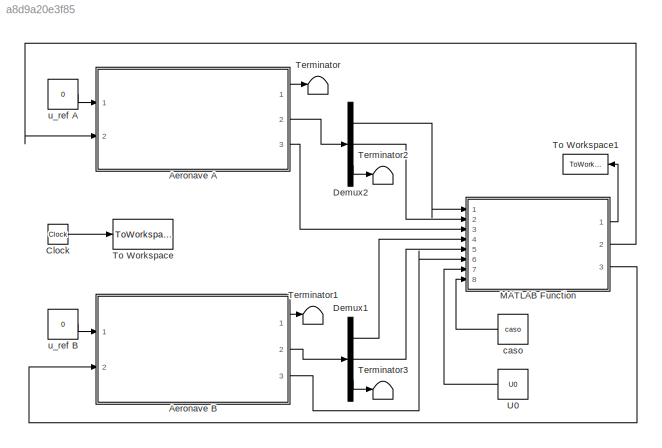
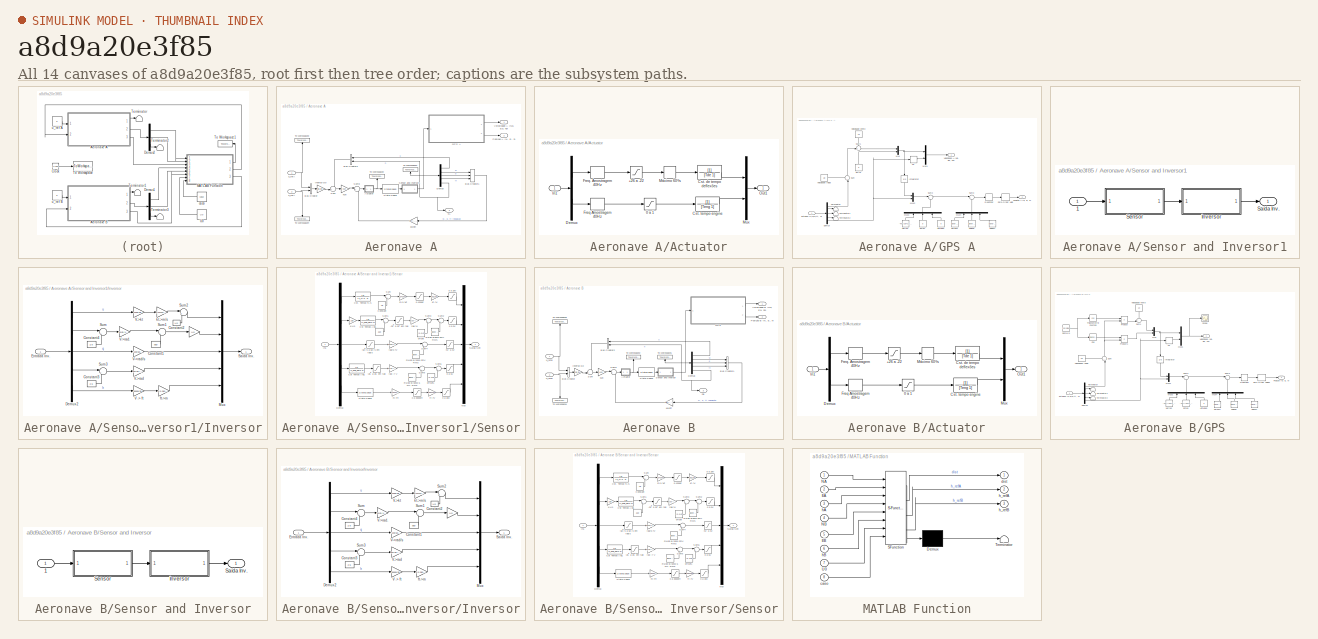
[diagram: thumbnail index - all 14 canvases of the model, root first then tree order]
MODEL slx_a8d9a20e3f85
KIND model
CONFIG AbsTol = auto
CONFIG EnableMultiTasking = off
CONFIG FixedStep = auto
CONFIG MaxStep = auto
CONFIG MinStep = auto
CONFIG RelTol = 1e-3
CONFIG SampleTimeConstraint = Unconstrained
CONFIG Solver = VariableStepAuto
CONFIG SolverName = VariableStepAuto
CONFIG StartTime = 0.0
CONFIG StopTime = 100
BLOCK [SubSystem] Aeronave A
  Ports = [2, 3]
  RequestExecContextInheritance = off
BLOCK [SubSystem] Aeronave A/Actuator
  Ports = [1, 1]
  RequestExecContextInheritance = off
BLOCK [Saturate] Aeronave A/Actuator/+26 a -22
  LowerLimit = demin
  UpperLimit = demax
BLOCK [Saturate] Aeronave A/Actuator/0 a 1
  LowerLimit = dtmin
  UpperLimit = dtmax
BLOCK [TransferFcn] Aeronave A/Actuator/Cst. de tempo deflexões
  Denominator = [Tde 1]
BLOCK [TransferFcn] Aeronave A/Actuator/Cst. tempo engine
  Denominator = [Teng 1]
BLOCK [Demux] Aeronave A/Actuator/Demux
  Outputs = 2
  Ports = [1, 2]
BLOCK [ZeroOrderHold] Aeronave A/Actuator/Freq Amostragem 40Hz
  SampleTime = 1/f_amostr
BLOCK [ZeroOrderHold] Aeronave A/Actuator/Freq. Amostragem 40Hz
  SampleTime = 1/f_amostr
BLOCK [Inport] Aeronave A/Actuator/In1
BLOCK [Mux] Aeronave A/Actuator/Mux
  DisplayOption = bar
  Inputs = 2
  Ports = [2, 1]
BLOCK [RateLimiter] Aeronave A/Actuator/Máximo 60º//s
  FallingSlewLimit = vmin_de
  LinearizeAsGain = off
  RisingSlewLimit = vmax_de
  SampleTimeMode = inherited
BLOCK [Outport] Aeronave A/Actuator/Out1
BLOCK [BusCreator] Aeronave A/Bus Creator
  DisplayOption = bar
  InheritFromInputs = on
  Inputs = 2
  Ports = [2, 1]
BLOCK [BusCreator] Aeronave A/Bus Creator1
  DisplayOption = bar
  InheritFromInputs = on
  Inputs = 3
  Ports = [3, 1]
BLOCK [BusCreator] Aeronave A/Bus Creator2
  DisplayOption = bar
  InheritFromInputs = on
  Inputs = 2
  NameLocation = top
  Ports = [2, 1]
BLOCK [Demux] Aeronave A/Demux
  Outputs = 5
  Ports = [1, 5]
BLOCK [SubSystem] Aeronave A/GPS A
  Ports = [1, 2]
  RequestExecContextInheritance = off
BLOCK [Constant] Aeronave A/GPS A/Altitude0
  NameLocation = left
  Value = 0
BLOCK [Demux] Aeronave A/GPS A/Demux
  Outputs = 5
  Ports = [1, 5]
BLOCK [Constant] Aeronave A/GPS A/EOAp
  NameLocation = right
  Value = 0
BLOCK [Constant] Aeronave A/GPS A/Este0
  NameLocation = left
  Value = 0
BLOCK [Integrator] Aeronave A/GPS A/Integrator
  NameLocation = left
  Ports = [1, 1]
BLOCK [Mux] Aeronave A/GPS A/Mux
  DisplayOption = bar
  Inputs = 2
  Ports = [2, 1]
BLOCK [Mux] Aeronave A/GPS A/Mux1
  DisplayOption = bar
  Inputs = 2
  Ports = [2, 1]
BLOCK [Mux] Aeronave A/GPS A/Mux2
  DisplayOption = bar
  Inputs = 2
  Ports = [2, 1]
BLOCK [Mux] Aeronave A/GPS A/Mux3
  DisplayOption = bar
  Inputs = 3
  NameLocation = right
  Ports = [3, 1]
BLOCK [Mux] Aeronave A/GPS A/Mux4
  DisplayOption = bar
  Inputs = 3
  NameLocation = right
  Ports = [3, 1]
BLOCK [Constant] Aeronave A/GPS A/Norte0
  NameLocation = left
  Value = -40*(U0+u_ref-uW)
BLOCK [Outport] Aeronave A/GPS A/Posição A (N, E, h)
  Port = 2
  VectorParamsAs1DForOutWhenUnconnected = off
BLOCK [Quantizer] Aeronave A/GPS A/Quantizer
BLOCK [Reference] Aeronave A/GPS A/RuidoE  REF=simulink/Sources/Band-Limited
White Noise
  NameLocation = right
  Ports = [0, 1]
  SourceBlock = simulink/Sources/Band-Limited\nWhite Noise
  SourceProductBaseCode = SL
  SourceType = Band-Limited White Noise.
BLOCK [Reference] Aeronave A/GPS A/RuidoH  REF=simulink/Sources/Band-Limited
White Noise
  NameLocation = right
  Ports = [0, 1]
  SourceBlock = simulink/Sources/Band-Limited\nWhite Noise
  SourceProductBaseCode = SL
  SourceType = Band-Limited White Noise.
BLOCK [Reference] Aeronave A/GPS A/RuídoN  REF=simulink/Sources/Band-Limited
White Noise
  NameLocation = right
  Ports = [0, 1]
  SourceBlock = simulink/Sources/Band-Limited\nWhite Noise
  SourceProductBaseCode = SL
  SourceType = Band-Limited White Noise.
BLOCK [Sum] Aeronave A/GPS A/Sum
  Inputs = ++|
  NameLocation = right
  Ports = [2, 1]
BLOCK [Sum] Aeronave A/GPS A/Sum1
  Inputs = -+|
  Ports = [2, 1]
BLOCK [Sum] Aeronave A/GPS A/Sum2
  Inputs = |++
  Ports = [2, 1]
BLOCK [Sum] Aeronave A/GPS A/Sum3
  Inputs = |++
  Ports = [2, 1]
BLOCK [Terminator] Aeronave A/GPS A/Terminator
BLOCK [Terminator] Aeronave A/GPS A/Terminator1
BLOCK [Terminator] Aeronave A/GPS A/Terminator2
BLOCK [Outport] Aeronave A/GPS A/Velocidade A (Np, Ep, hp)
  VectorParamsAs1DForOutWhenUnconnected = off
BLOCK [Constant] Aeronave A/GPS A/Velocidade Inicial 
  Value = U0
BLOCK [Constant] Aeronave A/GPS A/Velocidade vento
  NameLocation = left
  Value = 10
BLOCK [ZeroOrderHold] Aeronave A/GPS A/Zero-Order Hold
  SampleTime = 0.1
BLOCK [Inport] Aeronave A/GPS A/estados [u,w,q,tt, h]
BLOCK [Derivative] Aeronave A/GPS A/hp 
BLOCK [Gain] Aeronave A/Inverso G0
  Gain = G0_inv
  Multiplication = Matrix(K*u)
BLOCK [Outport] Aeronave A/Posição A (N, E, h)
  Port = 2
  VectorParamsAs1DForOutWhenUnconnected = off
BLOCK [SubSystem] Aeronave A/Sensor and Inversor1
  Ports = [1, 1]
  RequestExecContextInheritance = off
BLOCK [Inport] Aeronave A/Sensor and Inversor1/1
BLOCK [SubSystem] Aeronave A/Sensor and Inversor1/Inversor
  Ports = [1, 1]
  RequestExecContextInheritance = off
BLOCK [Gain] Aeronave A/Sensor and Inversor1/Inversor/ 
  Gain = U0
BLOCK [Constant] Aeronave A/Sensor and Inversor1/Inversor/Constant1
  Value = aa0
BLOCK [Constant] Aeronave A/Sensor and Inversor1/Inversor/Constant2
  Value = U0
BLOCK [Constant] Aeronave A/Sensor and Inversor1/Inversor/Constant3
  Value = 2.5
BLOCK [Constant] Aeronave A/Sensor and Inversor1/Inversor/Constant4
  Value = 2.5
BLOCK [Demux] Aeronave A/Sensor and Inversor1/Inversor/Demux2
  Outputs = 5
  Ports = [1, 5]
BLOCK [Inport] Aeronave A/Sensor and Inversor1/Inversor/Entrada Inv.
BLOCK [Mux] Aeronave A/Sensor and Inversor1/Inversor/Mux
  DisplayOption = bar
  Inputs = 5
  Ports = [5, 1]
BLOCK [Outport] Aeronave A/Sensor and Inversor1/Inversor/Saída Inv.
  VectorParamsAs1DForOutWhenUnconnected = off
BLOCK [Sum] Aeronave A/Sensor and Inversor1/Inversor/Sum
  Inputs = |+-
  Ports = [2, 1]
BLOCK [Sum] Aeronave A/Sensor and Inversor1/Inversor/Sum1
  Inputs = |+-
  Ports = [2, 1]
BLOCK [Sum] Aeronave A/Sensor and Inversor1/Inversor/Sum2
  Inputs = |+-
  Ports = [2, 1]
BLOCK [Sum] Aeronave A/Sensor and Inversor1/Inversor/Sum3
  Inputs = |+-
  Ports = [2, 1]
BLOCK [Gain] Aeronave A/Sensor and Inversor1/Inversor/V -> ft
  Gain = 30000/28
BLOCK [Gain] Aeronave A/Sensor and Inversor1/Inversor/V->kt
  Gain = 1200/28
BLOCK [Gain] Aeronave A/Sensor and Inversor1/Inversor/V->rad
  Gain = 10*(pi/180)
BLOCK [Gain] Aeronave A/Sensor and Inversor1/Inversor/V->rad.
  Gain = 10*pi/180
BLOCK [Gain] Aeronave A/Sensor and Inversor1/Inversor/V->rad//s
  Gain = (100/60)*pi/180
BLOCK [Gain] Aeronave A/Sensor and Inversor1/Inversor/ft->m
  Gain = 1/3.2808399
BLOCK [Gain] Aeronave A/Sensor and Inversor1/Inversor/kt->m//s
  Gain = 0.5144444
BLOCK [Outport] Aeronave A/Sensor and Inversor1/Saída Inv.
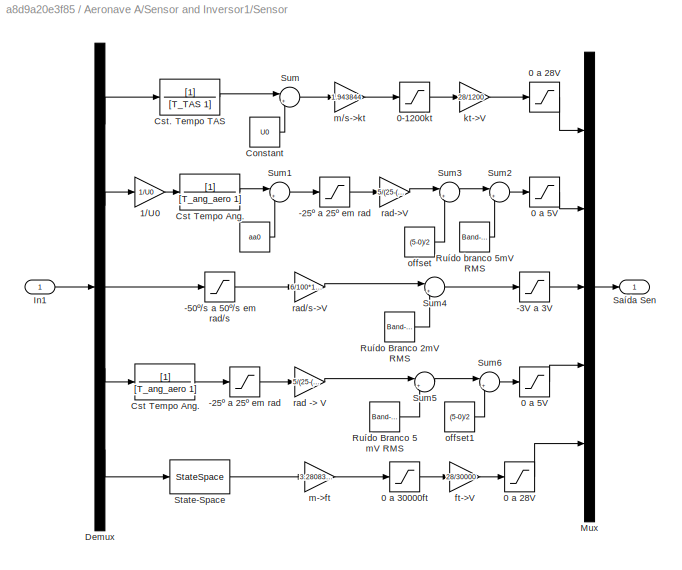
BLOCK [SubSystem] Aeronave A/Sensor and Inversor1/Sensor
  Ports = [1, 1]
  RequestExecContextInheritance = off
BLOCK [Constant] Aeronave A/Sensor and Inversor1/Sensor/ 
  Value = aa0
BLOCK [Saturate] Aeronave A/Sensor and Inversor1/Sensor/-25º a 25º em rad
  LowerLimit = -25*(pi/180)
  UpperLimit = 25*(pi/180)
BLOCK [Saturate] Aeronave A/Sensor and Inversor1/Sensor/-25º a 25º em rad 
  LowerLimit = -25*(pi/180)
  UpperLimit = 25*(pi/180)
BLOCK [Saturate] Aeronave A/Sensor and Inversor1/Sensor/-3V a 3V
  LowerLimit = -3
  UpperLimit = 3
BLOCK [Saturate] Aeronave A/Sensor and Inversor1/Sensor/-50º//s a 50º//s em rad//s
  LowerLimit = -50*(pi/180)
  UpperLimit = 50*(pi/180)
BLOCK [Saturate] Aeronave A/Sensor and Inversor1/Sensor/0 a 28V
  LowerLimit = 0
  UpperLimit = 28
BLOCK [Saturate] Aeronave A/Sensor and Inversor1/Sensor/0 a 28V 
  LowerLimit = -1
  UpperLimit = 28
BLOCK [Saturate] Aeronave A/Sensor and Inversor1/Sensor/0 a 30000ft
  LowerLimit = 0
  UpperLimit = 30000
BLOCK [Saturate] Aeronave A/Sensor and Inversor1/Sensor/0 a 5V
  LowerLimit = 0
  UpperLimit = 5
BLOCK [Saturate] Aeronave A/Sensor and Inversor1/Sensor/0 a 5V 
  LowerLimit = -5
  UpperLimit = 5
BLOCK [Saturate] Aeronave A/Sensor and Inversor1/Sensor/0-1200kt
  LowerLimit = 0
  UpperLimit = 1200
BLOCK [Gain] Aeronave A/Sensor and Inversor1/Sensor/1//U0
  Gain = 1/U0
BLOCK [Constant] Aeronave A/Sensor and Inversor1/Sensor/Constant
  Value = U0
BLOCK [TransferFcn] Aeronave A/Sensor and Inversor1/Sensor/Cst Tempo Ang.
  Denominator = [T_ang_aero 1]
BLOCK [TransferFcn] Aeronave A/Sensor and Inversor1/Sensor/Cst. Tempo TAS 
  Denominator = [T_TAS 1]
BLOCK [Demux] Aeronave A/Sensor and Inversor1/Sensor/Demux
  Outputs = 5
  Ports = [1, 5]
BLOCK [Inport] Aeronave A/Sensor and Inversor1/Sensor/In1
BLOCK [Mux] Aeronave A/Sensor and Inversor1/Sensor/Mux
  DisplayOption = bar
  Inputs = 5
  Ports = [5, 1]
BLOCK [Reference] Aeronave A/Sensor and Inversor1/Sensor/Ruído Branco 2mV RMS  REF=simulink/Sources/Band-Limited
White Noise
  Ports = [0, 1]
  SourceBlock = simulink/Sources/Band-Limited\nWhite Noise
  SourceProductBaseCode = SL
  SourceType = Band-Limited White Noise.
BLOCK [Reference] Aeronave A/Sensor and Inversor1/Sensor/Ruído Branco 5 mV RMS  REF=simulink/Sources/Band-Limited
White Noise
  Ports = [0, 1]
  SourceBlock = simulink/Sources/Band-Limited\nWhite Noise
  SourceProductBaseCode = SL
  SourceType = Band-Limited White Noise.
BLOCK [Reference] Aeronave A/Sensor and Inversor1/Sensor/Ruído branco 5mV RMS  REF=simulink/Sources/Band-Limited
White Noise
  Ports = [0, 1]
  SourceBlock = simulink/Sources/Band-Limited\nWhite Noise
  SourceProductBaseCode = SL
  SourceType = Band-Limited White Noise.
BLOCK [Outport] Aeronave A/Sensor and Inversor1/Sensor/Saída Sen
BLOCK [StateSpace] Aeronave A/Sensor and Inversor1/Sensor/State-Space
  A = A_sensorh
  B = B_sensorh
  C = C_sensorh
  D = D_sensorh
  InitialCondition = 762
  Ports = [1, 1]
BLOCK [Sum] Aeronave A/Sensor and Inversor1/Sensor/Sum
  Inputs = |++
  Ports = [2, 1]
BLOCK [Sum] Aeronave A/Sensor and Inversor1/Sensor/Sum1
  Inputs = |++
  Ports = [2, 1]
BLOCK [Sum] Aeronave A/Sensor and Inversor1/Sensor/Sum2
  Inputs = |++
  Ports = [2, 1]
BLOCK [Sum] Aeronave A/Sensor and Inversor1/Sensor/Sum3
  Inputs = |++
  Ports = [2, 1]
BLOCK [Sum] Aeronave A/Sensor and Inversor1/Sensor/Sum4
  Inputs = |++
  Ports = [2, 1]
BLOCK [Sum] Aeronave A/Sensor and Inversor1/Sensor/Sum5
  Inputs = |++
  Ports = [2, 1]
BLOCK [Sum] Aeronave A/Sensor and Inversor1/Sensor/Sum6
  Inputs = |++
  Ports = [2, 1]
BLOCK [Gain] Aeronave A/Sensor and Inversor1/Sensor/ft->V
  Gain = 28/30000
BLOCK [Gain] Aeronave A/Sensor and Inversor1/Sensor/kt->V
  Gain = 28/1200
BLOCK [Gain] Aeronave A/Sensor and Inversor1/Sensor/m->ft
  Gain = 3.2808399
BLOCK [Gain] Aeronave A/Sensor and Inversor1/Sensor/m//s->kt
  Gain = 1.943844
BLOCK [Constant] Aeronave A/Sensor and Inversor1/Sensor/offset
  Value = (5-0)/2
BLOCK [Constant] Aeronave A/Sensor and Inversor1/Sensor/offset1
  Value = (5-0)/2
BLOCK [Gain] Aeronave A/Sensor and Inversor1/Sensor/rad -> V
  Gain = 5/(25-(-25))*180/pi
BLOCK [Gain] Aeronave A/Sensor and Inversor1/Sensor/rad->V
  Gain = 5/(25-(-25))*180/pi
BLOCK [Gain] Aeronave A/Sensor and Inversor1/Sensor/rad//s->V
  Gain = 6/100*180/pi
BLOCK [StateSpace] Aeronave A/State-Space
  A = A_lqr
  B = B_lqr
  C = C_lqr
  D = D_lqr
  InitialCondition = [0,0,0,0,h]
  Ports = [1, 1]
BLOCK [Sum] Aeronave A/Sum
  Inputs = -+|
  Ports = [2, 1]
BLOCK [Sum] Aeronave A/Sum3
  Inputs = |+-
  Ports = [2, 1]
BLOCK [ToWorkspace] Aeronave A/To Workspace1
  FixptAsFi = on
  MaxDataPoints = inf
  NameLocation = right
  Ports = [1]
  SampleTime = 0.1
  SaveFormat = Structure With Time
  VariableName = VariaveisA
BLOCK [ToWorkspace] Aeronave A/To Workspace2
  FixptAsFi = on
  MaxDataPoints = inf
  NameLocation = right
  Ports = [1]
  SampleTime = 0.1
  SaveFormat = Structure With Time
  VariableName = InputsA
BLOCK [ToWorkspace] Aeronave A/To Workspace3
  FixptAsFi = on
  MaxDataPoints = inf
  NameLocation = right
  Ports = [1]
  SampleTime = 0.1
  SaveFormat = Structure With Time
  VariableName = u_refA
BLOCK [ToWorkspace] Aeronave A/To Workspace4
  FixptAsFi = on
  MaxDataPoints = inf
  NameLocation = left
  Ports = [1]
  SampleTime = 0.1
  SaveFormat = Structure With Time
  VariableName = h_refA
BLOCK [Outport] Aeronave A/Velocidade A (Np, Ep, hp)
  VectorParamsAs1DForOutWhenUnconnected = off
BLOCK [Outport] Aeronave A/hA
  Port = 3
BLOCK [Inport] Aeronave A/h_refA
  Port = 2
BLOCK [Gain] Aeronave A/kuh
  Gain = kuh
  Multiplication = Matrix(K*u)
BLOCK [Gain] Aeronave A/kwqtt
  Gain = Klqr(:,2:4)
  Multiplication = Matrix(K*u)
  NameLocation = top
BLOCK [Inport] Aeronave A/u_refA
BLOCK [SubSystem] Aeronave B
  Ports = [2, 3]
  RequestExecContextInheritance = off
BLOCK [SubSystem] Aeronave B/Actuator
  Ports = [1, 1]
  RequestExecContextInheritance = off
BLOCK [Saturate] Aeronave B/Actuator/+26 a -22
  LowerLimit = demin
  UpperLimit = demax
BLOCK [Saturate] Aeronave B/Actuator/0 a 1
  LowerLimit = dtmin
  UpperLimit = dtmax
BLOCK [TransferFcn] Aeronave B/Actuator/Cst. de tempo deflexões
  Denominator = [Tde 1]
BLOCK [TransferFcn] Aeronave B/Actuator/Cst. tempo engine
  Denominator = [Teng 1]
BLOCK [Demux] Aeronave B/Actuator/Demux
  Outputs = 2
  Ports = [1, 2]
BLOCK [ZeroOrderHold] Aeronave B/Actuator/Freq Amostragem 40Hz
  SampleTime = 1/f_amostr
BLOCK [ZeroOrderHold] Aeronave B/Actuator/Freq. Amostragem 40Hz
  SampleTime = 1/f_amostr
BLOCK [Inport] Aeronave B/Actuator/In1
BLOCK [Mux] Aeronave B/Actuator/Mux
  DisplayOption = bar
  Inputs = 2
  Ports = [2, 1]
BLOCK [RateLimiter] Aeronave B/Actuator/Máximo 60º//s
  FallingSlewLimit = vmin_de
  LinearizeAsGain = off
  RisingSlewLimit = vmax_de
  SampleTimeMode = inherited
BLOCK [Outport] Aeronave B/Actuator/Out1
BLOCK [BusCreator] Aeronave B/Bus Creator
  DisplayOption = bar
  InheritFromInputs = on
  Inputs = 2
  Ports = [2, 1]
BLOCK [BusCreator] Aeronave B/Bus Creator1
  DisplayOption = bar
  InheritFromInputs = on
  Inputs = 3
  Ports = [3, 1]
BLOCK [BusCreator] Aeronave B/Bus Creator2
  DisplayOption = bar
  InheritFromInputs = on
  Inputs = 2
  NameLocation = top
  Ports = [2, 1]
BLOCK [Demux] Aeronave B/Demux
  Outputs = 5
  Ports = [1, 5]
BLOCK [SubSystem] Aeronave B/GPS
  Ports = [1, 2]
  RequestExecContextInheritance = off
BLOCK [Constant] Aeronave B/GPS/Altitude0
  NameLocation = left
  Value = 0
BLOCK [Trigonometry] Aeronave B/GPS/Cos
  Ports = [1, 1]
BLOCK [Demux] Aeronave B/GPS/Demux
  Outputs = 5
  Ports = [1, 5]
BLOCK [Constant] Aeronave B/GPS/Este0
  NameLocation = left
  Value = -40*((U0+u_ref)*sin(135*pi/180))
BLOCK [Integrator] Aeronave B/GPS/Integrator
  NameLocation = left
  Ports = [1, 1]
BLOCK [Mux] Aeronave B/GPS/Mux
  DisplayOption = bar
  Inputs = 2
  Ports = [2, 1]
BLOCK [Mux] Aeronave B/GPS/Mux1
  DisplayOption = bar
  Inputs = 2
  Ports = [2, 1]
BLOCK [Mux] Aeronave B/GPS/Mux2
  DisplayOption = bar
  Inputs = 2
  Ports = [2, 1]
BLOCK [Mux] Aeronave B/GPS/Mux3
  DisplayOption = bar
  Inputs = 3
  NameLocation = right
  Ports = [3, 1]
BLOCK [Mux] Aeronave B/GPS/Mux4
  DisplayOption = bar
  Inputs = 3
  NameLocation = right
  Ports = [3, 1]
BLOCK [Constant] Aeronave B/GPS/Norte0
  NameLocation = left
  Value = -40*((U0+u_ref)*cos(135*pi/180)+uW)
BLOCK [Outport] Aeronave B/GPS/Posição (N, E, h)
  Port = 2
  VectorParamsAs1DForOutWhenUnconnected = off
BLOCK [Product] Aeronave B/GPS/Product
  Ports = [2, 1]
BLOCK [Product] Aeronave B/GPS/Product1
  Ports = [2, 1]
BLOCK [Quantizer] Aeronave B/GPS/Quantizer
BLOCK [Reference] Aeronave B/GPS/RuidoE  REF=simulink/Sources/Band-Limited
White Noise
  NameLocation = right
  Ports = [0, 1]
  SourceBlock = simulink/Sources/Band-Limited\nWhite Noise
  SourceProductBaseCode = SL
  SourceType = Band-Limited White Noise.
BLOCK [Reference] Aeronave B/GPS/RuisoH  REF=simulink/Sources/Band-Limited
White Noise
  NameLocation = right
  Ports = [0, 1]
  SourceBlock = simulink/Sources/Band-Limited\nWhite Noise
  SourceProductBaseCode = SL
  SourceType = Band-Limited White Noise.
BLOCK [Constant] Aeronave B/GPS/Rumo(X) 
  Value = 135*pi/180
BLOCK [Reference] Aeronave B/GPS/RuídoN  REF=simulink/Sources/Band-Limited
White Noise
  NameLocation = right
  Ports = [0, 1]
  SourceBlock = simulink/Sources/Band-Limited\nWhite Noise
  SourceProductBaseCode = SL
  SourceType = Band-Limited White Noise.
BLOCK [Scope] Aeronave B/GPS/Scope
  Floating = off
  NumInputPorts = 1
  Ports = [1]
  ScopeSpecificationString = Simulink.scopes.TimeScopeBlockCfg('CurrentConfiguration', extmgr.ConfigurationSet(extmgr.Configuration('Core','General UI',true),extmgr.Configuration('Core','Source UI',true),extmgr.Configuration('Sources','WiredSimulink',true,'DataLoggingVariableName','ScopeData2'),extmgr.Configuration('Visuals','Time Domain',true,'SerializedDisplays',{struct('MinYLimReal','-113.93137','MaxYLimReal','123.93137','...<+1425ch>
BLOCK [Sum] Aeronave B/GPS/Sum
  Inputs = ++|
  NameLocation = right
  Ports = [2, 1]
BLOCK [Sum] Aeronave B/GPS/Sum1
  Inputs = ++|
  Ports = [2, 1]
BLOCK [Sum] Aeronave B/GPS/Sum2
  Inputs = |++
  Ports = [2, 1]
BLOCK [Sum] Aeronave B/GPS/Sum3
  Inputs = |++
  Ports = [2, 1]
BLOCK [Terminator] Aeronave B/GPS/Terminator
BLOCK [Terminator] Aeronave B/GPS/Terminator1
BLOCK [Terminator] Aeronave B/GPS/Terminator2
BLOCK [Trigonometry] Aeronave B/GPS/Trigonometric Function
  Operator = cos
  Ports = [1, 1]
BLOCK [Outport] Aeronave B/GPS/Velocidade (Np, Ep, hp)
  VectorParamsAs1DForOutWhenUnconnected = off
BLOCK [Constant] Aeronave B/GPS/Velocidade Inicial 
  Value = U0
BLOCK [Constant] Aeronave B/GPS/Velocidade vento
  NameLocation = left
  Value = 10
BLOCK [ZeroOrderHold] Aeronave B/GPS/Zero Order Holder
  SampleTime = 0.1
BLOCK [Inport] Aeronave B/GPS/estados [u,w,q,tt, h]
BLOCK [Derivative] Aeronave B/GPS/hp 
BLOCK [Gain] Aeronave B/Inverso G0
  Gain = G0_inv
  Multiplication = Matrix(K*u)
BLOCK [Outport] Aeronave B/Posição B (N, E, h)
  Port = 2
  VectorParamsAs1DForOutWhenUnconnected = off
BLOCK [SubSystem] Aeronave B/Sensor and Inversor
  Ports = [1, 1]
  RequestExecContextInheritance = off
BLOCK [Inport] Aeronave B/Sensor and Inversor/1
BLOCK [SubSystem] Aeronave B/Sensor and Inversor/Inversor
  Ports = [1, 1]
  RequestExecContextInheritance = off
BLOCK [Gain] Aeronave B/Sensor and Inversor/Inversor/ 
  Gain = U0
BLOCK [Constant] Aeronave B/Sensor and Inversor/Inversor/Constant1
  Value = aa0
BLOCK [Constant] Aeronave B/Sensor and Inversor/Inversor/Constant2
  Value = U0
BLOCK [Constant] Aeronave B/Sensor and Inversor/Inversor/Constant3
  Value = 2.5
BLOCK [Constant] Aeronave B/Sensor and Inversor/Inversor/Constant4
  Value = 2.5
BLOCK [Demux] Aeronave B/Sensor and Inversor/Inversor/Demux2
  Outputs = 5
  Ports = [1, 5]
BLOCK [Inport] Aeronave B/Sensor and Inversor/Inversor/Entrada Inv.
BLOCK [Mux] Aeronave B/Sensor and Inversor/Inversor/Mux
  DisplayOption = bar
  Inputs = 5
  Ports = [5, 1]
BLOCK [Outport] Aeronave B/Sensor and Inversor/Inversor/Saída Inv.
  VectorParamsAs1DForOutWhenUnconnected = off
BLOCK [Sum] Aeronave B/Sensor and Inversor/Inversor/Sum
  Inputs = |+-
  Ports = [2, 1]
BLOCK [Sum] Aeronave B/Sensor and Inversor/Inversor/Sum1
  Inputs = |+-
  Ports = [2, 1]
BLOCK [Sum] Aeronave B/Sensor and Inversor/Inversor/Sum2
  Inputs = |+-
  Ports = [2, 1]
BLOCK [Sum] Aeronave B/Sensor and Inversor/Inversor/Sum3
  Inputs = |+-
  Ports = [2, 1]
BLOCK [Gain] Aeronave B/Sensor and Inversor/Inversor/V -> ft
  Gain = 30000/28
BLOCK [Gain] Aeronave B/Sensor and Inversor/Inversor/V->kt
  Gain = 1200/28
BLOCK [Gain] Aeronave B/Sensor and Inversor/Inversor/V->rad
  Gain = 10*(pi/180)
BLOCK [Gain] Aeronave B/Sensor and Inversor/Inversor/V->rad.
  Gain = 10*pi/180
BLOCK [Gain] Aeronave B/Sensor and Inversor/Inversor/V->rad//s
  Gain = (100/60)*pi/180
BLOCK [Gain] Aeronave B/Sensor and Inversor/Inversor/ft->m
  Gain = 1/3.2808399
BLOCK [Gain] Aeronave B/Sensor and Inversor/Inversor/kt->m//s
  Gain = 0.5144444
BLOCK [Outport] Aeronave B/Sensor and Inversor/Saída Inv.
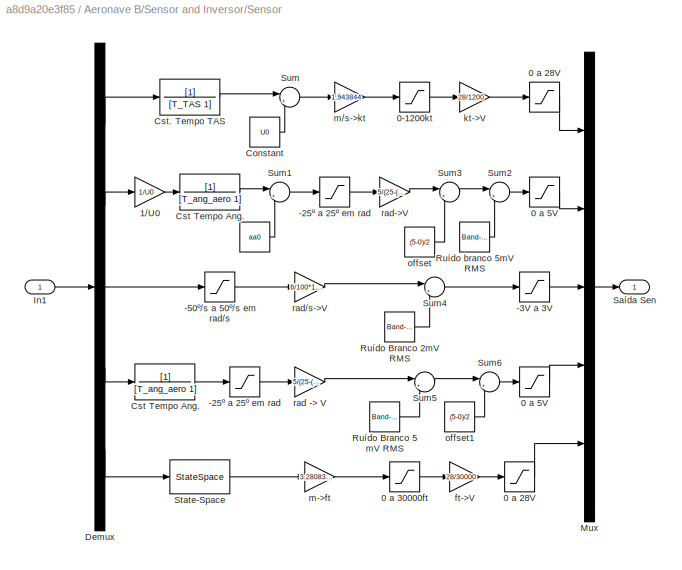
BLOCK [SubSystem] Aeronave B/Sensor and Inversor/Sensor
  Ports = [1, 1]
  RequestExecContextInheritance = off
BLOCK [Constant] Aeronave B/Sensor and Inversor/Sensor/ 
  Value = aa0
BLOCK [Saturate] Aeronave B/Sensor and Inversor/Sensor/-25º a 25º em rad
  LowerLimit = -25*(pi/180)
  UpperLimit = 25*(pi/180)
BLOCK [Saturate] Aeronave B/Sensor and Inversor/Sensor/-25º a 25º em rad 
  LowerLimit = -25*(pi/180)
  UpperLimit = 25*(pi/180)
BLOCK [Saturate] Aeronave B/Sensor and Inversor/Sensor/-3V a 3V
  LowerLimit = -3
  UpperLimit = 3
BLOCK [Saturate] Aeronave B/Sensor and Inversor/Sensor/-50º//s a 50º//s em rad//s
  LowerLimit = -50*(pi/180)
  UpperLimit = 50*(pi/180)
BLOCK [Saturate] Aeronave B/Sensor and Inversor/Sensor/0 a 28V
  LowerLimit = 0
  UpperLimit = 28
BLOCK [Saturate] Aeronave B/Sensor and Inversor/Sensor/0 a 28V 
  LowerLimit = -1
  UpperLimit = 28
BLOCK [Saturate] Aeronave B/Sensor and Inversor/Sensor/0 a 30000ft
  LowerLimit = 0
  UpperLimit = 30000
BLOCK [Saturate] Aeronave B/Sensor and Inversor/Sensor/0 a 5V
  LowerLimit = 0
  UpperLimit = 5
BLOCK [Saturate] Aeronave B/Sensor and Inversor/Sensor/0 a 5V 
  LowerLimit = -5
  UpperLimit = 5
BLOCK [Saturate] Aeronave B/Sensor and Inversor/Sensor/0-1200kt
  LowerLimit = 0
  UpperLimit = 1200
BLOCK [Gain] Aeronave B/Sensor and Inversor/Sensor/1//U0
  Gain = 1/U0
BLOCK [Constant] Aeronave B/Sensor and Inversor/Sensor/Constant
  Value = U0
BLOCK [TransferFcn] Aeronave B/Sensor and Inversor/Sensor/Cst Tempo Ang.
  Denominator = [T_ang_aero 1]
BLOCK [TransferFcn] Aeronave B/Sensor and Inversor/Sensor/Cst. Tempo TAS 
  Denominator = [T_TAS 1]
BLOCK [Demux] Aeronave B/Sensor and Inversor/Sensor/Demux
  Outputs = 5
  Ports = [1, 5]
BLOCK [Inport] Aeronave B/Sensor and Inversor/Sensor/In1
BLOCK [Mux] Aeronave B/Sensor and Inversor/Sensor/Mux
  DisplayOption = bar
  Inputs = 5
  Ports = [5, 1]
BLOCK [Reference] Aeronave B/Sensor and Inversor/Sensor/Ruído Branco 2mV RMS  REF=simulink/Sources/Band-Limited
White Noise
  Ports = [0, 1]
  SourceBlock = simulink/Sources/Band-Limited\nWhite Noise
  SourceProductBaseCode = SL
  SourceType = Band-Limited White Noise.
BLOCK [Reference] Aeronave B/Sensor and Inversor/Sensor/Ruído Branco 5 mV RMS  REF=simulink/Sources/Band-Limited
White Noise
  Ports = [0, 1]
  SourceBlock = simulink/Sources/Band-Limited\nWhite Noise
  SourceProductBaseCode = SL
  SourceType = Band-Limited White Noise.
BLOCK [Reference] Aeronave B/Sensor and Inversor/Sensor/Ruído branco 5mV RMS  REF=simulink/Sources/Band-Limited
White Noise
  Ports = [0, 1]
  SourceBlock = simulink/Sources/Band-Limited\nWhite Noise
  SourceProductBaseCode = SL
  SourceType = Band-Limited White Noise.
BLOCK [Outport] Aeronave B/Sensor and Inversor/Sensor/Saída Sen
BLOCK [StateSpace] Aeronave B/Sensor and Inversor/Sensor/State-Space
  A = A_sensorh
  B = B_sensorh
  C = C_sensorh
  D = D_sensorh
  InitialCondition = 762
  Ports = [1, 1]
BLOCK [Sum] Aeronave B/Sensor and Inversor/Sensor/Sum
  Inputs = |++
  Ports = [2, 1]
BLOCK [Sum] Aeronave B/Sensor and Inversor/Sensor/Sum1
  Inputs = |++
  Ports = [2, 1]
BLOCK [Sum] Aeronave B/Sensor and Inversor/Sensor/Sum2
  Inputs = |++
  Ports = [2, 1]
BLOCK [Sum] Aeronave B/Sensor and Inversor/Sensor/Sum3
  Inputs = |++
  Ports = [2, 1]
BLOCK [Sum] Aeronave B/Sensor and Inversor/Sensor/Sum4
  Inputs = |++
  Ports = [2, 1]
BLOCK [Sum] Aeronave B/Sensor and Inversor/Sensor/Sum5
  Inputs = |++
  Ports = [2, 1]
BLOCK [Sum] Aeronave B/Sensor and Inversor/Sensor/Sum6
  Inputs = |++
  Ports = [2, 1]
BLOCK [Gain] Aeronave B/Sensor and Inversor/Sensor/ft->V
  Gain = 28/30000
BLOCK [Gain] Aeronave B/Sensor and Inversor/Sensor/kt->V
  Gain = 28/1200
BLOCK [Gain] Aeronave B/Sensor and Inversor/Sensor/m->ft
  Gain = 3.2808399
BLOCK [Gain] Aeronave B/Sensor and Inversor/Sensor/m//s->kt
  Gain = 1.943844
BLOCK [Constant] Aeronave B/Sensor and Inversor/Sensor/offset
  Value = (5-0)/2
BLOCK [Constant] Aeronave B/Sensor and Inversor/Sensor/offset1
  Value = (5-0)/2
BLOCK [Gain] Aeronave B/Sensor and Inversor/Sensor/rad -> V
  Gain = 5/(25-(-25))*180/pi
BLOCK [Gain] Aeronave B/Sensor and Inversor/Sensor/rad->V
  Gain = 5/(25-(-25))*180/pi
BLOCK [Gain] Aeronave B/Sensor and Inversor/Sensor/rad//s->V
  Gain = 6/100*180/pi
BLOCK [StateSpace] Aeronave B/State-Space
  A = A_lqr
  B = B_lqr
  C = C_lqr
  D = D_lqr
  InitialCondition = [0,0,0,0,h]
  Ports = [1, 1]
BLOCK [Sum] Aeronave B/Sum
  Inputs = -+|
  Ports = [2, 1]
BLOCK [Sum] Aeronave B/Sum3
  Inputs = |+-
  Ports = [2, 1]
BLOCK [ToWorkspace] Aeronave B/To Workspace1
  FixptAsFi = on
  MaxDataPoints = inf
  NameLocation = right
  Ports = [1]
  SampleTime = 0.1
  SaveFormat = Structure With Time
  VariableName = VariaveisB
BLOCK [ToWorkspace] Aeronave B/To Workspace2
  FixptAsFi = on
  MaxDataPoints = inf
  NameLocation = right
  Ports = [1]
  SampleTime = 0.1
  SaveFormat = Structure With Time
  VariableName = InputsB
BLOCK [ToWorkspace] Aeronave B/To Workspace3
  FixptAsFi = on
  MaxDataPoints = inf
  NameLocation = right
  Ports = [1]
  SampleTime = 0.1
  SaveFormat = Structure With Time
  VariableName = u_refB
BLOCK [ToWorkspace] Aeronave B/To Workspace4
  FixptAsFi = on
  MaxDataPoints = inf
  NameLocation = left
  Ports = [1]
  SampleTime = 0.1
  SaveFormat = Structure With Time
  VariableName = h_refB
BLOCK [Outport] Aeronave B/Velocidade B (Np, Ep, hp)
  VectorParamsAs1DForOutWhenUnconnected = off
BLOCK [Outport] Aeronave B/hB
  Port = 3
BLOCK [Inport] Aeronave B/h_refB
  Port = 2
BLOCK [Gain] Aeronave B/kuh
  Gain = kuh
  Multiplication = Matrix(K*u)
BLOCK [Gain] Aeronave B/kwqtt
  Gain = Klqr(:,2:4)
  Multiplication = Matrix(K*u)
  NameLocation = top
BLOCK [Inport] Aeronave B/u_refB
BLOCK [Clock] Clock
BLOCK [Demux] Demux1
  Outputs = 3
  Ports = [1, 3]
BLOCK [Demux] Demux2
  Outputs = 3
  Ports = [1, 3]
BLOCK [SubSystem] MATLAB Function
  ErrorFcn = Stateflow.Translate.translate
  PermitHierarchicalResolution = ExplicitOnly
  Ports = [8, 3]
  RequestExecContextInheritance = off
  SFBlockType = MATLAB Function
  TreatAsAtomicUnit = on
BLOCK [Demux] MATLAB Function/ Demux 
  Outputs = 1
  Ports = [1, 1]
BLOCK [S-Function] MATLAB Function/ SFunction 
  EnableBusSupport = on
  FunctionName = sf_sfun
  PortCounts = [8 4]
  Ports = [8, 4]
  SFcnIsStateOwnerBlock = off
  SFunctionDeploymentMode = off
  Tag = Stateflow S-Function 2
BLOCK [Terminator] MATLAB Function/ Terminator 
BLOCK [Inport] MATLAB Function/EA
  Port = 2
BLOCK [Inport] MATLAB Function/EB
  Port = 5
BLOCK [Inport] MATLAB Function/NA
BLOCK [Inport] MATLAB Function/NB
  Port = 4
BLOCK [Inport] MATLAB Function/U0
  Port = 7
BLOCK [Inport] MATLAB Function/caso
  Port = 8
BLOCK [Outport] MATLAB Function/dist
  VectorParamsAs1DForOutWhenUnconnected = off
BLOCK [Inport] MATLAB Function/hA
  Port = 3
BLOCK [Inport] MATLAB Function/hB
  Port = 6
BLOCK [Outport] MATLAB Function/h_refA
  Port = 2
  VectorParamsAs1DForOutWhenUnconnected = off
BLOCK [Outport] MATLAB Function/h_refB
  Port = 3
  VectorParamsAs1DForOutWhenUnconnected = off
BLOCK [Terminator] Terminator
BLOCK [Terminator] Terminator1
BLOCK [Terminator] Terminator2
BLOCK [Terminator] Terminator3
BLOCK [ToWorkspace] To Workspace
  FixptAsFi = on
  MaxDataPoints = inf
  Ports = [1]
  SampleTime = 1
  VariableName = time
BLOCK [ToWorkspace] To Workspace1
  FixptAsFi = on
  MaxDataPoints = inf
  NameLocation = top
  Ports = [1]
  SampleTime = -1
  SaveFormat = Structure With Time
  VariableName = dist
BLOCK [Constant] U0
  NameLocation = top
  Value = U0
BLOCK [Constant] caso
  NameLocation = top
  Value = caso
BLOCK [Constant] u_ref A
  Value = 0
BLOCK [Constant] u_ref B
  Value = 0
LINE Aeronave A/Actuator/+26 a -22:1 -> Aeronave A/Actuator/Máximo 60º//s:1
LINE Aeronave A/Actuator/0 a 1:1 -> Aeronave A/Actuator/Cst. tempo engine:1
LINE Aeronave A/Actuator/Cst. de tempo deflexões:1 -> Aeronave A/Actuator/Mux:1
LINE Aeronave A/Actuator/Cst. tempo engine:1 -> Aeronave A/Actuator/Mux:2
LINE Aeronave A/Actuator/Demux:1 -> Aeronave A/Actuator/Freq. Amostragem 40Hz:1
LINE Aeronave A/Actuator/Demux:2 -> Aeronave A/Actuator/Freq Amostragem 40Hz:1
LINE Aeronave A/Actuator/Freq Amostragem 40Hz:1 -> Aeronave A/Actuator/0 a 1:1
LINE Aeronave A/Actuator/Freq. Amostragem 40Hz:1 -> Aeronave A/Actuator/+26 a -22:1
LINE Aeronave A/Actuator/In1:1 -> Aeronave A/Actuator/Demux:1
LINE Aeronave A/Actuator/Mux:1 -> Aeronave A/Actuator/Out1:1
LINE Aeronave A/Actuator/Máximo 60º//s:1 -> Aeronave A/Actuator/Cst. de tempo deflexões:1
NET Aeronave A/Actuator:1 -> Aeronave A/State-Space:1, Aeronave A/To Workspace2:1
LINE Aeronave A/Bus Creator1:1 -> Aeronave A/kwqtt:1
LINE Aeronave A/Bus Creator2:1 -> Aeronave A/Sum:1
LINE Aeronave A/Bus Creator:1 -> Aeronave A/Inverso G0:1
LINE Aeronave A/Demux:1 -> Aeronave A/Bus Creator2:1
LINE Aeronave A/Demux:2 -> Aeronave A/Bus Creator1:1
LINE Aeronave A/Demux:3 -> Aeronave A/Bus Creator1:2
LINE Aeronave A/Demux:4 -> Aeronave A/Bus Creator1:3
NET Aeronave A/Demux:5 -> Aeronave A/Bus Creator2:2, Aeronave A/hA:1
LINE Aeronave A/GPS A/Altitude0:1 -> Aeronave A/GPS A/Mux3:3
LINE Aeronave A/GPS A/Demux:1 -> Aeronave A/GPS A/Sum:2
LINE Aeronave A/GPS A/Demux:2 -> Aeronave A/GPS A/Terminator:1
LINE Aeronave A/GPS A/Demux:3 -> Aeronave A/GPS A/Terminator1:1
LINE Aeronave A/GPS A/Demux:4 -> Aeronave A/GPS A/Terminator2:1
NET Aeronave A/GPS A/Demux:5 -> Aeronave A/GPS A/Mux2:2, Aeronave A/GPS A/hp :1
LINE Aeronave A/GPS A/EOAp:1 -> Aeronave A/GPS A/Mux:2
LINE Aeronave A/GPS A/Este0:1 -> Aeronave A/GPS A/Mux3:2
LINE Aeronave A/GPS A/Integrator:1 -> Aeronave A/GPS A/Mux2:1
LINE Aeronave A/GPS A/Mux1:1 -> Aeronave A/GPS A/Velocidade A (Np, Ep, hp):1
LINE Aeronave A/GPS A/Mux2:1 -> Aeronave A/GPS A/Sum2:1
LINE Aeronave A/GPS A/Mux3:1 -> Aeronave A/GPS A/Sum2:2
LINE Aeronave A/GPS A/Mux4:1 -> Aeronave A/GPS A/Sum3:2
NET Aeronave A/GPS A/Mux:1 -> Aeronave A/GPS A/Integrator:1, Aeronave A/GPS A/Mux1:1
LINE Aeronave A/GPS A/Norte0:1 -> Aeronave A/GPS A/Mux3:1
LINE Aeronave A/GPS A/Quantizer:1 -> Aeronave A/GPS A/Zero-Order Hold:1
LINE Aeronave A/GPS A/RuidoE:1 -> Aeronave A/GPS A/Mux4:2
LINE Aeronave A/GPS A/RuidoH:1 -> Aeronave A/GPS A/Mux4:3
LINE Aeronave A/GPS A/RuídoN:1 -> Aeronave A/GPS A/Mux4:1
LINE Aeronave A/GPS A/Sum1:1 -> Aeronave A/GPS A/Mux:1
LINE Aeronave A/GPS A/Sum2:1 -> Aeronave A/GPS A/Sum3:1
LINE Aeronave A/GPS A/Sum3:1 -> Aeronave A/GPS A/Quantizer:1
LINE Aeronave A/GPS A/Sum:1 -> Aeronave A/GPS A/Sum1:2
LINE Aeronave A/GPS A/Velocidade Inicial :1 -> Aeronave A/GPS A/Sum:1
LINE Aeronave A/GPS A/Velocidade vento:1 -> Aeronave A/GPS A/Sum1:1
LINE Aeronave A/GPS A/Zero-Order Hold:1 -> Aeronave A/GPS A/Posição A (N, E, h):1
LINE Aeronave A/GPS A/estados [u,w,q,tt, h]:1 -> Aeronave A/GPS A/Demux:1
LINE Aeronave A/GPS A/hp :1 -> Aeronave A/GPS A/Mux1:2
LINE Aeronave A/GPS A:1 -> Aeronave A/Velocidade A (Np, Ep, hp):1
LINE Aeronave A/GPS A:2 -> Aeronave A/Posição A (N, E, h):1
LINE Aeronave A/Inverso G0:1 -> Aeronave A/Sum:2
LINE Aeronave A/Sensor and Inversor1/1:1 -> Aeronave A/Sensor and Inversor1/Sensor:1
LINE Aeronave A/Sensor and Inversor1/Inversor/ :1 -> Aeronave A/Sensor and Inversor1/Inversor/Mux:2
LINE Aeronave A/Sensor and Inversor1/Inversor/Constant1:1 -> Aeronave A/Sensor and Inversor1/Inversor/Sum1:2
LINE Aeronave A/Sensor and Inversor1/Inversor/Constant2:1 -> Aeronave A/Sensor and Inversor1/Inversor/Sum2:2
LINE Aeronave A/Sensor and Inversor1/Inversor/Constant3:1 -> Aeronave A/Sensor and Inversor1/Inversor/Sum3:2
LINE Aeronave A/Sensor and Inversor1/Inversor/Constant4:1 -> Aeronave A/Sensor and Inversor1/Inversor/Sum:2
LINE Aeronave A/Sensor and Inversor1/Inversor/Demux2:1 -> Aeronave A/Sensor and Inversor1/Inversor/V->kt:1
LINE Aeronave A/Sensor and Inversor1/Inversor/Demux2:2 -> Aeronave A/Sensor and Inversor1/Inversor/Sum:1
LINE Aeronave A/Sensor and Inversor1/Inversor/Demux2:3 -> Aeronave A/Sensor and Inversor1/Inversor/V->rad//s:1
LINE Aeronave A/Sensor and Inversor1/Inversor/Demux2:4 -> Aeronave A/Sensor and Inversor1/Inversor/Sum3:1
LINE Aeronave A/Sensor and Inversor1/Inversor/Demux2:5 -> Aeronave A/Sensor and Inversor1/Inversor/V -> ft:1
LINE Aeronave A/Sensor and Inversor1/Inversor/Entrada Inv.:1 -> Aeronave A/Sensor and Inversor1/Inversor/Demux2:1
LINE Aeronave A/Sensor and Inversor1/Inversor/Mux:1 -> Aeronave A/Sensor and Inversor1/Inversor/Saída Inv.:1
LINE Aeronave A/Sensor and Inversor1/Inversor/Sum1:1 -> Aeronave A/Sensor and Inversor1/Inversor/ :1
LINE Aeronave A/Sensor and Inversor1/Inversor/Sum2:1 -> Aeronave A/Sensor and Inversor1/Inversor/Mux:1
LINE Aeronave A/Sensor and Inversor1/Inversor/Sum3:1 -> Aeronave A/Sensor and Inversor1/Inversor/V->rad:1
LINE Aeronave A/Sensor and Inversor1/Inversor/Sum:1 -> Aeronave A/Sensor and Inversor1/Inversor/V->rad.:1
LINE Aeronave A/Sensor and Inversor1/Inversor/V -> ft:1 -> Aeronave A/Sensor and Inversor1/Inversor/ft->m:1
LINE Aeronave A/Sensor and Inversor1/Inversor/V->kt:1 -> Aeronave A/Sensor and Inversor1/Inversor/kt->m//s:1
LINE Aeronave A/Sensor and Inversor1/Inversor/V->rad.:1 -> Aeronave A/Sensor and Inversor1/Inversor/Sum1:1
LINE Aeronave A/Sensor and Inversor1/Inversor/V->rad//s:1 -> Aeronave A/Sensor and Inversor1/Inversor/Mux:3
LINE Aeronave A/Sensor and Inversor1/Inversor/V->rad:1 -> Aeronave A/Sensor and Inversor1/Inversor/Mux:4
LINE Aeronave A/Sensor and Inversor1/Inversor/ft->m:1 -> Aeronave A/Sensor and Inversor1/Inversor/Mux:5
LINE Aeronave A/Sensor and Inversor1/Inversor/kt->m//s:1 -> Aeronave A/Sensor and Inversor1/Inversor/Sum2:1
LINE Aeronave A/Sensor and Inversor1/Inversor:1 -> Aeronave A/Sensor and Inversor1/Saída Inv.:1
LINE Aeronave A/Sensor and Inversor1/Sensor/ :1 -> Aeronave A/Sensor and Inversor1/Sensor/Sum1:2
LINE Aeronave A/Sensor and Inversor1/Sensor/-25º a 25º em rad :1 -> Aeronave A/Sensor and Inversor1/Sensor/rad -> V:1
LINE Aeronave A/Sensor and Inversor1/Sensor/-25º a 25º em rad:1 -> Aeronave A/Sensor and Inversor1/Sensor/rad->V:1
LINE Aeronave A/Sensor and Inversor1/Sensor/-3V a 3V:1 -> Aeronave A/Sensor and Inversor1/Sensor/Mux:3
LINE Aeronave A/Sensor and Inversor1/Sensor/-50º//s a 50º//s em rad//s:1 -> Aeronave A/Sensor and Inversor1/Sensor/rad//s->V:1
LINE Aeronave A/Sensor and Inversor1/Sensor/0 a 28V :1 -> Aeronave A/Sensor and Inversor1/Sensor/Mux:5
LINE Aeronave A/Sensor and Inversor1/Sensor/0 a 28V:1 -> Aeronave A/Sensor and Inversor1/Sensor/Mux:1
LINE Aeronave A/Sensor and Inversor1/Sensor/0 a 30000ft:1 -> Aeronave A/Sensor and Inversor1/Sensor/ft->V:1
LINE Aeronave A/Sensor and Inversor1/Sensor/0 a 5V :1 -> Aeronave A/Sensor and Inversor1/Sensor/Mux:4
LINE Aeronave A/Sensor and Inversor1/Sensor/0 a 5V:1 -> Aeronave A/Sensor and Inversor1/Sensor/Mux:2
LINE Aeronave A/Sensor and Inversor1/Sensor/0-1200kt:1 -> Aeronave A/Sensor and Inversor1/Sensor/kt->V:1
LINE Aeronave A/Sensor and Inversor1/Sensor/1//U0:1 -> Aeronave A/Sensor and Inversor1/Sensor/Cst Tempo Ang.:1
LINE Aeronave A/Sensor and Inversor1/Sensor/Constant:1 -> Aeronave A/Sensor and Inversor1/Sensor/Sum:2
NET Aeronave A/Sensor and Inversor1/Sensor/Cst Tempo Ang.:1 -> Aeronave A/Sensor and Inversor1/Sensor/-25º a 25º em rad :1, Aeronave A/Sensor and Inversor1/Sensor/Sum1:1
LINE Aeronave A/Sensor and Inversor1/Sensor/Cst. Tempo TAS :1 -> Aeronave A/Sensor and Inversor1/Sensor/Sum:1
LINE Aeronave A/Sensor and Inversor1/Sensor/Demux:1 -> Aeronave A/Sensor and Inversor1/Sensor/Cst. Tempo TAS :1
LINE Aeronave A/Sensor and Inversor1/Sensor/Demux:2 -> Aeronave A/Sensor and Inversor1/Sensor/1//U0:1
LINE Aeronave A/Sensor and Inversor1/Sensor/Demux:3 -> Aeronave A/Sensor and Inversor1/Sensor/-50º//s a 50º//s em rad//s:1
LINE Aeronave A/Sensor and Inversor1/Sensor/Demux:4 -> Aeronave A/Sensor and Inversor1/Sensor/Cst Tempo Ang.:1
LINE Aeronave A/Sensor and Inversor1/Sensor/Demux:5 -> Aeronave A/Sensor and Inversor1/Sensor/State-Space:1
LINE Aeronave A/Sensor and Inversor1/Sensor/In1:1 -> Aeronave A/Sensor and Inversor1/Sensor/Demux:1
LINE Aeronave A/Sensor and Inversor1/Sensor/Mux:1 -> Aeronave A/Sensor and Inversor1/Sensor/Saída Sen:1
LINE Aeronave A/Sensor and Inversor1/Sensor/Ruído Branco 2mV RMS:1 -> Aeronave A/Sensor and Inversor1/Sensor/Sum4:2
LINE Aeronave A/Sensor and Inversor1/Sensor/Ruído Branco 5 mV RMS:1 -> Aeronave A/Sensor and Inversor1/Sensor/Sum5:2
LINE Aeronave A/Sensor and Inversor1/Sensor/Ruído branco 5mV RMS:1 -> Aeronave A/Sensor and Inversor1/Sensor/Sum2:2
LINE Aeronave A/Sensor and Inversor1/Sensor/State-Space:1 -> Aeronave A/Sensor and Inversor1/Sensor/m->ft:1
LINE Aeronave A/Sensor and Inversor1/Sensor/Sum1:1 -> Aeronave A/Sensor and Inversor1/Sensor/-25º a 25º em rad:1
LINE Aeronave A/Sensor and Inversor1/Sensor/Sum2:1 -> Aeronave A/Sensor and Inversor1/Sensor/0 a 5V:1
LINE Aeronave A/Sensor and Inversor1/Sensor/Sum3:1 -> Aeronave A/Sensor and Inversor1/Sensor/Sum2:1
LINE Aeronave A/Sensor and Inversor1/Sensor/Sum4:1 -> Aeronave A/Sensor and Inversor1/Sensor/-3V a 3V:1
LINE Aeronave A/Sensor and Inversor1/Sensor/Sum5:1 -> Aeronave A/Sensor and Inversor1/Sensor/Sum6:1
LINE Aeronave A/Sensor and Inversor1/Sensor/Sum6:1 -> Aeronave A/Sensor and Inversor1/Sensor/0 a 5V :1
LINE Aeronave A/Sensor and Inversor1/Sensor/Sum:1 -> Aeronave A/Sensor and Inversor1/Sensor/m//s->kt:1
LINE Aeronave A/Sensor and Inversor1/Sensor/ft->V:1 -> Aeronave A/Sensor and Inversor1/Sensor/0 a 28V :1
LINE Aeronave A/Sensor and Inversor1/Sensor/kt->V:1 -> Aeronave A/Sensor and Inversor1/Sensor/0 a 28V:1
LINE Aeronave A/Sensor and Inversor1/Sensor/m->ft:1 -> Aeronave A/Sensor and Inversor1/Sensor/0 a 30000ft:1
LINE Aeronave A/Sensor and Inversor1/Sensor/m//s->kt:1 -> Aeronave A/Sensor and Inversor1/Sensor/0-1200kt:1
LINE Aeronave A/Sensor and Inversor1/Sensor/offset1:1 -> Aeronave A/Sensor and Inversor1/Sensor/Sum6:2
LINE Aeronave A/Sensor and Inversor1/Sensor/offset:1 -> Aeronave A/Sensor and Inversor1/Sensor/Sum3:2
LINE Aeronave A/Sensor and Inversor1/Sensor/rad -> V:1 -> Aeronave A/Sensor and Inversor1/Sensor/Sum5:1
LINE Aeronave A/Sensor and Inversor1/Sensor/rad->V:1 -> Aeronave A/Sensor and Inversor1/Sensor/Sum3:1
LINE Aeronave A/Sensor and Inversor1/Sensor/rad//s->V:1 -> Aeronave A/Sensor and Inversor1/Sensor/Sum4:1
LINE Aeronave A/Sensor and Inversor1/Sensor:1 -> Aeronave A/Sensor and Inversor1/Inversor:1
NET Aeronave A/Sensor and Inversor1:1 -> Aeronave A/Demux:1, Aeronave A/GPS A:1, Aeronave A/To Workspace1:1
LINE Aeronave A/State-Space:1 -> Aeronave A/Sensor and Inversor1:1
LINE Aeronave A/Sum3:1 -> Aeronave A/Actuator:1
LINE Aeronave A/Sum:1 -> Aeronave A/kuh:1
NET Aeronave A/h_refA:1 -> Aeronave A/Bus Creator:2, Aeronave A/To Workspace4:1
LINE Aeronave A/kuh:1 -> Aeronave A/Sum3:1
LINE Aeronave A/kwqtt:1 -> Aeronave A/Sum3:2
NET Aeronave A/u_refA:1 -> Aeronave A/Bus Creator:1, Aeronave A/To Workspace3:1
LINE Aeronave A:1 -> Terminator:1
LINE Aeronave A:2 -> Demux2:1
LINE Aeronave A:3 -> MATLAB Function:3
LINE Aeronave B/Actuator/+26 a -22:1 -> Aeronave B/Actuator/Máximo 60º//s:1
LINE Aeronave B/Actuator/0 a 1:1 -> Aeronave B/Actuator/Cst. tempo engine:1
LINE Aeronave B/Actuator/Cst. de tempo deflexões:1 -> Aeronave B/Actuator/Mux:1
LINE Aeronave B/Actuator/Cst. tempo engine:1 -> Aeronave B/Actuator/Mux:2
LINE Aeronave B/Actuator/Demux:1 -> Aeronave B/Actuator/Freq. Amostragem 40Hz:1
LINE Aeronave B/Actuator/Demux:2 -> Aeronave B/Actuator/Freq Amostragem 40Hz:1
LINE Aeronave B/Actuator/Freq Amostragem 40Hz:1 -> Aeronave B/Actuator/0 a 1:1
LINE Aeronave B/Actuator/Freq. Amostragem 40Hz:1 -> Aeronave B/Actuator/+26 a -22:1
LINE Aeronave B/Actuator/In1:1 -> Aeronave B/Actuator/Demux:1
LINE Aeronave B/Actuator/Mux:1 -> Aeronave B/Actuator/Out1:1
LINE Aeronave B/Actuator/Máximo 60º//s:1 -> Aeronave B/Actuator/Cst. de tempo deflexões:1
NET Aeronave B/Actuator:1 -> Aeronave B/State-Space:1, Aeronave B/To Workspace2:1
LINE Aeronave B/Bus Creator1:1 -> Aeronave B/kwqtt:1
LINE Aeronave B/Bus Creator2:1 -> Aeronave B/Sum:1
LINE Aeronave B/Bus Creator:1 -> Aeronave B/Inverso G0:1
LINE Aeronave B/Demux:1 -> Aeronave B/Bus Creator2:1
LINE Aeronave B/Demux:2 -> Aeronave B/Bus Creator1:1
LINE Aeronave B/Demux:3 -> Aeronave B/Bus Creator1:2
LINE Aeronave B/Demux:4 -> Aeronave B/Bus Creator1:3
NET Aeronave B/Demux:5 -> Aeronave B/Bus Creator2:2, Aeronave B/hB:1
LINE Aeronave B/GPS/Altitude0:1 -> Aeronave B/GPS/Mux3:3
LINE Aeronave B/GPS/Cos:1 -> Aeronave B/GPS/Product1:1
LINE Aeronave B/GPS/Demux:1 -> Aeronave B/GPS/Sum:2
LINE Aeronave B/GPS/Demux:2 -> Aeronave B/GPS/Terminator:1
LINE Aeronave B/GPS/Demux:3 -> Aeronave B/GPS/Terminator1:1
LINE Aeronave B/GPS/Demux:4 -> Aeronave B/GPS/Terminator2:1
NET Aeronave B/GPS/Demux:5 -> Aeronave B/GPS/Mux2:2, Aeronave B/GPS/hp :1
LINE Aeronave B/GPS/Este0:1 -> Aeronave B/GPS/Mux3:2
LINE Aeronave B/GPS/Integrator:1 -> Aeronave B/GPS/Mux2:1
NET Aeronave B/GPS/Mux1:1 -> Aeronave B/GPS/Scope:1, Aeronave B/GPS/Velocidade (Np, Ep, hp):1
LINE Aeronave B/GPS/Mux2:1 -> Aeronave B/GPS/Sum2:1
LINE Aeronave B/GPS/Mux3:1 -> Aeronave B/GPS/Sum2:2
LINE Aeronave B/GPS/Mux4:1 -> Aeronave B/GPS/Sum3:2
NET Aeronave B/GPS/Mux:1 -> Aeronave B/GPS/Integrator:1, Aeronave B/GPS/Mux1:1
LINE Aeronave B/GPS/Norte0:1 -> Aeronave B/GPS/Mux3:1
LINE Aeronave B/GPS/Product1:1 -> Aeronave B/GPS/Mux:2
LINE Aeronave B/GPS/Product:1 -> Aeronave B/GPS/Sum1:2
LINE Aeronave B/GPS/Quantizer:1 -> Aeronave B/GPS/Zero Order Holder:1
LINE Aeronave B/GPS/RuidoE:1 -> Aeronave B/GPS/Mux4:2
LINE Aeronave B/GPS/RuisoH:1 -> Aeronave B/GPS/Mux4:3
NET Aeronave B/GPS/Rumo(X) :1 -> Aeronave B/GPS/Cos:1, Aeronave B/GPS/Trigonometric Function:1
LINE Aeronave B/GPS/RuídoN:1 -> Aeronave B/GPS/Mux4:1
LINE Aeronave B/GPS/Sum1:1 -> Aeronave B/GPS/Mux:1
LINE Aeronave B/GPS/Sum2:1 -> Aeronave B/GPS/Sum3:1
LINE Aeronave B/GPS/Sum3:1 -> Aeronave B/GPS/Quantizer:1
NET Aeronave B/GPS/Sum:1 -> Aeronave B/GPS/Product1:2, Aeronave B/GPS/Product:2
LINE Aeronave B/GPS/Trigonometric Function:1 -> Aeronave B/GPS/Product:1
LINE Aeronave B/GPS/Velocidade Inicial :1 -> Aeronave B/GPS/Sum:1
LINE Aeronave B/GPS/Velocidade vento:1 -> Aeronave B/GPS/Sum1:1
LINE Aeronave B/GPS/Zero Order Holder:1 -> Aeronave B/GPS/Posição (N, E, h):1
LINE Aeronave B/GPS/estados [u,w,q,tt, h]:1 -> Aeronave B/GPS/Demux:1
LINE Aeronave B/GPS/hp :1 -> Aeronave B/GPS/Mux1:2
LINE Aeronave B/GPS:1 -> Aeronave B/Velocidade B (Np, Ep, hp):1
LINE Aeronave B/GPS:2 -> Aeronave B/Posição B (N, E, h):1
LINE Aeronave B/Inverso G0:1 -> Aeronave B/Sum:2
LINE Aeronave B/Sensor and Inversor/1:1 -> Aeronave B/Sensor and Inversor/Sensor:1
LINE Aeronave B/Sensor and Inversor/Inversor/ :1 -> Aeronave B/Sensor and Inversor/Inversor/Mux:2
LINE Aeronave B/Sensor and Inversor/Inversor/Constant1:1 -> Aeronave B/Sensor and Inversor/Inversor/Sum1:2
LINE Aeronave B/Sensor and Inversor/Inversor/Constant2:1 -> Aeronave B/Sensor and Inversor/Inversor/Sum2:2
LINE Aeronave B/Sensor and Inversor/Inversor/Constant3:1 -> Aeronave B/Sensor and Inversor/Inversor/Sum3:2
LINE Aeronave B/Sensor and Inversor/Inversor/Constant4:1 -> Aeronave B/Sensor and Inversor/Inversor/Sum:2
LINE Aeronave B/Sensor and Inversor/Inversor/Demux2:1 -> Aeronave B/Sensor and Inversor/Inversor/V->kt:1
LINE Aeronave B/Sensor and Inversor/Inversor/Demux2:2 -> Aeronave B/Sensor and Inversor/Inversor/Sum:1
LINE Aeronave B/Sensor and Inversor/Inversor/Demux2:3 -> Aeronave B/Sensor and Inversor/Inversor/V->rad//s:1
LINE Aeronave B/Sensor and Inversor/Inversor/Demux2:4 -> Aeronave B/Sensor and Inversor/Inversor/Sum3:1
LINE Aeronave B/Sensor and Inversor/Inversor/Demux2:5 -> Aeronave B/Sensor and Inversor/Inversor/V -> ft:1
LINE Aeronave B/Sensor and Inversor/Inversor/Entrada Inv.:1 -> Aeronave B/Sensor and Inversor/Inversor/Demux2:1
LINE Aeronave B/Sensor and Inversor/Inversor/Mux:1 -> Aeronave B/Sensor and Inversor/Inversor/Saída Inv.:1
LINE Aeronave B/Sensor and Inversor/Inversor/Sum1:1 -> Aeronave B/Sensor and Inversor/Inversor/ :1
LINE Aeronave B/Sensor and Inversor/Inversor/Sum2:1 -> Aeronave B/Sensor and Inversor/Inversor/Mux:1
LINE Aeronave B/Sensor and Inversor/Inversor/Sum3:1 -> Aeronave B/Sensor and Inversor/Inversor/V->rad:1
LINE Aeronave B/Sensor and Inversor/Inversor/Sum:1 -> Aeronave B/Sensor and Inversor/Inversor/V->rad.:1
LINE Aeronave B/Sensor and Inversor/Inversor/V -> ft:1 -> Aeronave B/Sensor and Inversor/Inversor/ft->m:1
LINE Aeronave B/Sensor and Inversor/Inversor/V->kt:1 -> Aeronave B/Sensor and Inversor/Inversor/kt->m//s:1
LINE Aeronave B/Sensor and Inversor/Inversor/V->rad.:1 -> Aeronave B/Sensor and Inversor/Inversor/Sum1:1
LINE Aeronave B/Sensor and Inversor/Inversor/V->rad//s:1 -> Aeronave B/Sensor and Inversor/Inversor/Mux:3
LINE Aeronave B/Sensor and Inversor/Inversor/V->rad:1 -> Aeronave B/Sensor and Inversor/Inversor/Mux:4
LINE Aeronave B/Sensor and Inversor/Inversor/ft->m:1 -> Aeronave B/Sensor and Inversor/Inversor/Mux:5
LINE Aeronave B/Sensor and Inversor/Inversor/kt->m//s:1 -> Aeronave B/Sensor and Inversor/Inversor/Sum2:1
LINE Aeronave B/Sensor and Inversor/Inversor:1 -> Aeronave B/Sensor and Inversor/Saída Inv.:1
LINE Aeronave B/Sensor and Inversor/Sensor/ :1 -> Aeronave B/Sensor and Inversor/Sensor/Sum1:2
LINE Aeronave B/Sensor and Inversor/Sensor/-25º a 25º em rad :1 -> Aeronave B/Sensor and Inversor/Sensor/rad -> V:1
LINE Aeronave B/Sensor and Inversor/Sensor/-25º a 25º em rad:1 -> Aeronave B/Sensor and Inversor/Sensor/rad->V:1
LINE Aeronave B/Sensor and Inversor/Sensor/-3V a 3V:1 -> Aeronave B/Sensor and Inversor/Sensor/Mux:3
LINE Aeronave B/Sensor and Inversor/Sensor/-50º//s a 50º//s em rad//s:1 -> Aeronave B/Sensor and Inversor/Sensor/rad//s->V:1
LINE Aeronave B/Sensor and Inversor/Sensor/0 a 28V :1 -> Aeronave B/Sensor and Inversor/Sensor/Mux:5
LINE Aeronave B/Sensor and Inversor/Sensor/0 a 28V:1 -> Aeronave B/Sensor and Inversor/Sensor/Mux:1
LINE Aeronave B/Sensor and Inversor/Sensor/0 a 30000ft:1 -> Aeronave B/Sensor and Inversor/Sensor/ft->V:1
LINE Aeronave B/Sensor and Inversor/Sensor/0 a 5V :1 -> Aeronave B/Sensor and Inversor/Sensor/Mux:4
LINE Aeronave B/Sensor and Inversor/Sensor/0 a 5V:1 -> Aeronave B/Sensor and Inversor/Sensor/Mux:2
LINE Aeronave B/Sensor and Inversor/Sensor/0-1200kt:1 -> Aeronave B/Sensor and Inversor/Sensor/kt->V:1
LINE Aeronave B/Sensor and Inversor/Sensor/1//U0:1 -> Aeronave B/Sensor and Inversor/Sensor/Cst Tempo Ang.:1
LINE Aeronave B/Sensor and Inversor/Sensor/Constant:1 -> Aeronave B/Sensor and Inversor/Sensor/Sum:2
NET Aeronave B/Sensor and Inversor/Sensor/Cst Tempo Ang.:1 -> Aeronave B/Sensor and Inversor/Sensor/-25º a 25º em rad :1, Aeronave B/Sensor and Inversor/Sensor/Sum1:1
LINE Aeronave B/Sensor and Inversor/Sensor/Cst. Tempo TAS :1 -> Aeronave B/Sensor and Inversor/Sensor/Sum:1
LINE Aeronave B/Sensor and Inversor/Sensor/Demux:1 -> Aeronave B/Sensor and Inversor/Sensor/Cst. Tempo TAS :1
LINE Aeronave B/Sensor and Inversor/Sensor/Demux:2 -> Aeronave B/Sensor and Inversor/Sensor/1//U0:1
LINE Aeronave B/Sensor and Inversor/Sensor/Demux:3 -> Aeronave B/Sensor and Inversor/Sensor/-50º//s a 50º//s em rad//s:1
LINE Aeronave B/Sensor and Inversor/Sensor/Demux:4 -> Aeronave B/Sensor and Inversor/Sensor/Cst Tempo Ang.:1
LINE Aeronave B/Sensor and Inversor/Sensor/Demux:5 -> Aeronave B/Sensor and Inversor/Sensor/State-Space:1
LINE Aeronave B/Sensor and Inversor/Sensor/In1:1 -> Aeronave B/Sensor and Inversor/Sensor/Demux:1
LINE Aeronave B/Sensor and Inversor/Sensor/Mux:1 -> Aeronave B/Sensor and Inversor/Sensor/Saída Sen:1
LINE Aeronave B/Sensor and Inversor/Sensor/Ruído Branco 2mV RMS:1 -> Aeronave B/Sensor and Inversor/Sensor/Sum4:2
LINE Aeronave B/Sensor and Inversor/Sensor/Ruído Branco 5 mV RMS:1 -> Aeronave B/Sensor and Inversor/Sensor/Sum5:2
LINE Aeronave B/Sensor and Inversor/Sensor/Ruído branco 5mV RMS:1 -> Aeronave B/Sensor and Inversor/Sensor/Sum2:2
LINE Aeronave B/Sensor and Inversor/Sensor/State-Space:1 -> Aeronave B/Sensor and Inversor/Sensor/m->ft:1
LINE Aeronave B/Sensor and Inversor/Sensor/Sum1:1 -> Aeronave B/Sensor and Inversor/Sensor/-25º a 25º em rad:1
LINE Aeronave B/Sensor and Inversor/Sensor/Sum2:1 -> Aeronave B/Sensor and Inversor/Sensor/0 a 5V:1
LINE Aeronave B/Sensor and Inversor/Sensor/Sum3:1 -> Aeronave B/Sensor and Inversor/Sensor/Sum2:1
LINE Aeronave B/Sensor and Inversor/Sensor/Sum4:1 -> Aeronave B/Sensor and Inversor/Sensor/-3V a 3V:1
LINE Aeronave B/Sensor and Inversor/Sensor/Sum5:1 -> Aeronave B/Sensor and Inversor/Sensor/Sum6:1
LINE Aeronave B/Sensor and Inversor/Sensor/Sum6:1 -> Aeronave B/Sensor and Inversor/Sensor/0 a 5V :1
LINE Aeronave B/Sensor and Inversor/Sensor/Sum:1 -> Aeronave B/Sensor and Inversor/Sensor/m//s->kt:1
LINE Aeronave B/Sensor and Inversor/Sensor/ft->V:1 -> Aeronave B/Sensor and Inversor/Sensor/0 a 28V :1
LINE Aeronave B/Sensor and Inversor/Sensor/kt->V:1 -> Aeronave B/Sensor and Inversor/Sensor/0 a 28V:1
LINE Aeronave B/Sensor and Inversor/Sensor/m->ft:1 -> Aeronave B/Sensor and Inversor/Sensor/0 a 30000ft:1
LINE Aeronave B/Sensor and Inversor/Sensor/m//s->kt:1 -> Aeronave B/Sensor and Inversor/Sensor/0-1200kt:1
LINE Aeronave B/Sensor and Inversor/Sensor/offset1:1 -> Aeronave B/Sensor and Inversor/Sensor/Sum6:2
LINE Aeronave B/Sensor and Inversor/Sensor/offset:1 -> Aeronave B/Sensor and Inversor/Sensor/Sum3:2
LINE Aeronave B/Sensor and Inversor/Sensor/rad -> V:1 -> Aeronave B/Sensor and Inversor/Sensor/Sum5:1
LINE Aeronave B/Sensor and Inversor/Sensor/rad->V:1 -> Aeronave B/Sensor and Inversor/Sensor/Sum3:1
LINE Aeronave B/Sensor and Inversor/Sensor/rad//s->V:1 -> Aeronave B/Sensor and Inversor/Sensor/Sum4:1
LINE Aeronave B/Sensor and Inversor/Sensor:1 -> Aeronave B/Sensor and Inversor/Inversor:1
NET Aeronave B/Sensor and Inversor:1 -> Aeronave B/Demux:1, Aeronave B/GPS:1, Aeronave B/To Workspace1:1
LINE Aeronave B/State-Space:1 -> Aeronave B/Sensor and Inversor:1
LINE Aeronave B/Sum3:1 -> Aeronave B/Actuator:1
LINE Aeronave B/Sum:1 -> Aeronave B/kuh:1
NET Aeronave B/h_refB:1 -> Aeronave B/Bus Creator:2, Aeronave B/To Workspace4:1
LINE Aeronave B/kuh:1 -> Aeronave B/Sum3:1
LINE Aeronave B/kwqtt:1 -> Aeronave B/Sum3:2
NET Aeronave B/u_refB:1 -> Aeronave B/Bus Creator:1, Aeronave B/To Workspace3:1
LINE Aeronave B:1 -> Terminator1:1
LINE Aeronave B:2 -> Demux1:1
LINE Aeronave B:3 -> MATLAB Function:6
LINE Clock:1 -> To Workspace:1
LINE Demux1:1 -> MATLAB Function:4
LINE Demux1:2 -> MATLAB Function:5
LINE Demux1:3 -> Terminator3:1
LINE Demux2:1 -> MATLAB Function:1
LINE Demux2:2 -> MATLAB Function:2
LINE Demux2:3 -> Terminator2:1
LINE MATLAB Function:1 -> To Workspace1:1
LINE MATLAB Function:2 -> Aeronave A:2
LINE MATLAB Function:3 -> Aeronave B:2
LINE U0:1 -> MATLAB Function:7
LINE caso:1 -> MATLAB Function:8
LINE u_ref A:1 -> Aeronave A:1
LINE u_ref B:1 -> Aeronave B:1
note: NET lines group one-source signal fan-out (src -> all destinations, sorted); 1:1 wires keep LINE
CHART MATLAB Function states=1 transitions=1
  STATE_LABEL 'eML_blk_kernel()'
  STATE_LABEL 'SCRIPT:\nfunction [dist, h_refA, h_refB] = TCAS(NA,EA,hA,NB,EB,hB,U0,caso)\n\nuW=10; %velocidade vento N-S\nu_ref=0;\ntt0=0.0440;\n\nNOB25=25*((U0+u_ref)*sin(135*pi/180)+uW);\nEOB25=25*((U0+u_ref)*cos(135*pi/180));\n\nNOA25=-25*(U0+u_ref-uW);\nEOA25=0;\n\nh_inicial = 7620;\nhB25=h_inicial;\nhA25=h_inicial;\n\ndist25=sqrt((NOB25-NOA25)^2+(EOB25-EOA25)^2+(hB25-hA25)^2);\n\n\ndist=sqrt((NB-NA)^2+(EB-EA)^2+(hB-hA)^2);\n\n%...<+408ch>'
CHART  states=0 transitions=0
